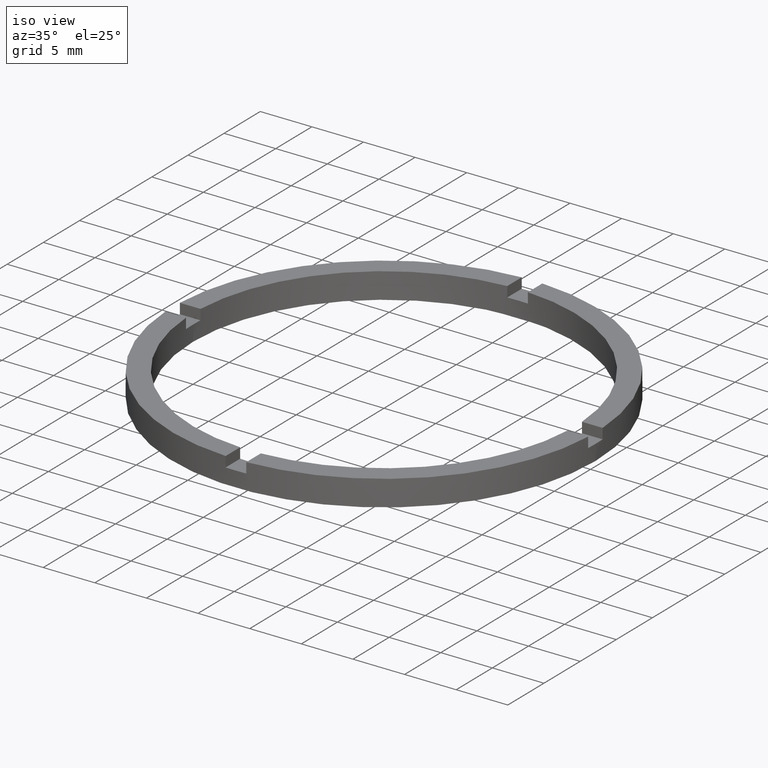
[diagram: clean part render]
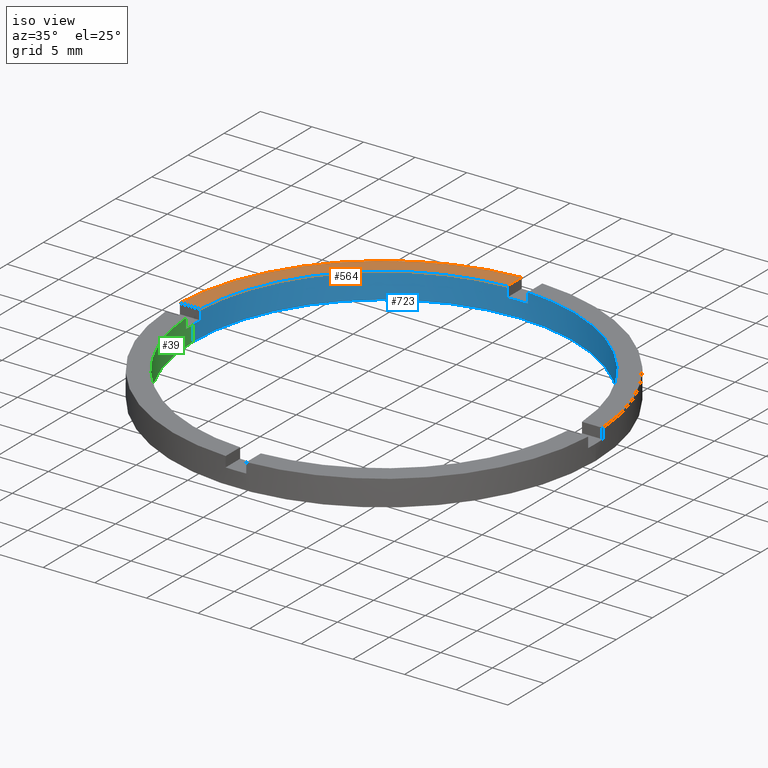
[diagram: same view with three faces highlighted in distinct colors, each labeled with its STEP entity id]
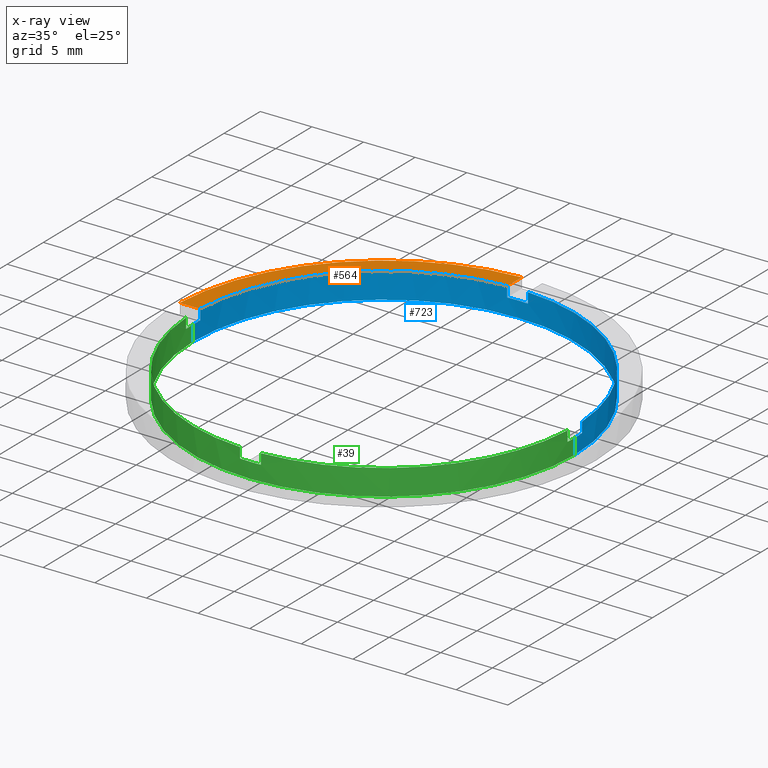
[diagram: x-ray of the same camera — body ghosted, the three highlighted faces saturated]
A machine part, iso view with three faces highlighted in distinct colors.
The next image is the same camera in x-ray (body ghosted, the three faces saturated) — at least one of them is partly hidden behind the body in this view.
Their STEP definitions:

[orange] entity #564 — the highlighted planar face has unit normal (0, 0, 1).
#53 = CARTESIAN_POINT ( 'NONE',  ( 0.000000000000000000, 0.000000000000000000, 2.500000000000000000 ) ) ;
#55 = CARTESIAN_POINT ( 'NONE',  ( -1.000000000000025091, 20.47559522944326460, 2.500000000000000000 ) ) ;
#60 = AXIS2_PLACEMENT_3D ( 'NONE', #121, #377, #285 ) ;
#98 = CARTESIAN_POINT ( 'NONE',  ( -1.000000000000025091, 18.47295320191116019, 2.500000000000000000 ) ) ;
#107 = DIRECTION ( 'NONE',  ( 0.000000000000000000, 0.000000000000000000, 1.000000000000000000 ) ) ;
#111 = LINE ( 'NONE', #543, #482 ) ;
#119 = EDGE_CURVE ( 'NONE', #438, #246, #530, .T. ) ;
#121 = CARTESIAN_POINT ( 'NONE',  ( 0.000000000000000000, 0.000000000000000000, 2.500000000000000000 ) ) ;
#127 = CIRCLE ( 'NONE', #391, 18.50000000000000000 ) ;
#132 = EDGE_LOOP ( 'NONE', ( #688, #197, #252, #206 ) ) ;
#197 = ORIENTED_EDGE ( 'NONE', *, *, #624, .T. ) ;
#206 = ORIENTED_EDGE ( 'NONE', *, *, #556, .F. ) ;
#246 = VERTEX_POINT ( 'NONE', #98 ) ;
#252 = ORIENTED_EDGE ( 'NONE', *, *, #767, .F. ) ;
#271 = DIRECTION ( 'NONE',  ( 1.000000000000000000, 0.000000000000000000, 0.000000000000000000 ) ) ;
#275 = CARTESIAN_POINT ( 'NONE',  ( -1.000000000000025535, 10.50000000000000000, 2.500000000000000000 ) ) ;
#278 = CARTESIAN_POINT ( 'NONE',  ( 0.000000000000000000, 0.000000000000000000, 2.500000000000000000 ) ) ;
#285 = DIRECTION ( 'NONE',  ( 1.000000000000000000, 0.000000000000000000, -0.000000000000000000 ) ) ;
#364 = DIRECTION ( 'NONE',  ( -0.000000000000000000, -1.000000000000000000, -0.000000000000000000 ) ) ;
#377 = DIRECTION ( 'NONE',  ( 0.000000000000000000, 0.000000000000000000, 1.000000000000000000 ) ) ;
#391 = AXIS2_PLACEMENT_3D ( 'NONE', #53, #107, #271 ) ;
#392 = CARTESIAN_POINT ( 'NONE',  ( -18.47295320191116375, 0.9999999999999754641, 2.500000000000000000 ) ) ;
#424 = VERTEX_POINT ( 'NONE', #675 ) ;
#431 = FACE_OUTER_BOUND ( 'NONE', #132, .T. ) ;
#438 = VERTEX_POINT ( 'NONE', #55 ) ;
#472 = PLANE ( 'NONE',  #60 ) ;
#482 = VECTOR ( 'NONE', #578, 1000.000000000000000 ) ;
#530 = LINE ( 'NONE', #275, #532 ) ;
#532 = VECTOR ( 'NONE', #364, 1000.000000000000000 ) ;
#543 = CARTESIAN_POINT ( 'NONE',  ( -10.50000000000018652, 0.9999999999999770184, 2.500000000000000000 ) ) ;
#556 = EDGE_CURVE ( 'NONE', #246, #674, #127, .T. ) ;
#564 = ADVANCED_FACE ( 'NONE', ( #431 ), #472, .T. ) ;
#578 = DIRECTION ( 'NONE',  ( -1.000000000000000000, -1.734723475976806848E-16, 0.000000000000000000 ) ) ;
#585 = AXIS2_PLACEMENT_3D ( 'NONE', #278, #678, #701 ) ;
#615 = CIRCLE ( 'NONE', #585, 20.50000000000000000 ) ;
#624 = EDGE_CURVE ( 'NONE', #438, #424, #615, .T. ) ;
#674 = VERTEX_POINT ( 'NONE', #392 ) ;
#675 = CARTESIAN_POINT ( 'NONE',  ( -20.47559522944327171, 0.9999999999999753530, 2.500000000000000000 ) ) ;
#678 = DIRECTION ( 'NONE',  ( 0.000000000000000000, 0.000000000000000000, 1.000000000000000000 ) ) ;
#688 = ORIENTED_EDGE ( 'NONE', *, *, #119, .F. ) ;
#701 = DIRECTION ( 'NONE',  ( 1.000000000000000000, 0.000000000000000000, 0.000000000000000000 ) ) ;
#767 = EDGE_CURVE ( 'NONE', #674, #424, #111, .T. ) ;

[blue] entity #723 — the highlighted cylindrical surface (partial cylindrical patch) has radius 18.5 mm, axis along (-0, -0, -1).
#1 = CIRCLE ( 'NONE', #116, 18.50000000000000000 ) ;
#9 = DIRECTION ( 'NONE',  ( 1.000000000000000000, 0.000000000000000000, 0.000000000000000000 ) ) ;
#30 = AXIS2_PLACEMENT_3D ( 'NONE', #92, #51, #108 ) ;
#43 = DIRECTION ( 'NONE',  ( -0.000000000000000000, -0.000000000000000000, -1.000000000000000000 ) ) ;
#51 = DIRECTION ( 'NONE',  ( 0.000000000000000000, 0.000000000000000000, 1.000000000000000000 ) ) ;
#52 = EDGE_CURVE ( 'NONE', #703, #422, #261, .T. ) ;
#53 = CARTESIAN_POINT ( 'NONE',  ( 0.000000000000000000, 0.000000000000000000, 2.500000000000000000 ) ) ;
#59 = CARTESIAN_POINT ( 'NONE',  ( 0.9999999999999740208, 18.47295320191116019, 1.500000000000000000 ) ) ;
#61 = CARTESIAN_POINT ( 'NONE',  ( 0.9999999999999744649, 18.47295320191116375, 2.500000000000000000 ) ) ;
#63 = CARTESIAN_POINT ( 'NONE',  ( 18.47295320191117085, 0.9999999999998416822, 2.500000000000000000 ) ) ;
#69 = EDGE_CURVE ( 'NONE', #138, #125, #1, .T. ) ;
#73 = DIRECTION ( 'NONE',  ( -0.000000000000000000, -0.000000000000000000, -1.000000000000000000 ) ) ;
#81 = DIRECTION ( 'NONE',  ( 1.000000000000000000, 0.000000000000000000, 0.000000000000000000 ) ) ;
#89 = VECTOR ( 'NONE', #73, 1000.000000000000000 ) ;
#92 = CARTESIAN_POINT ( 'NONE',  ( 0.000000000000000000, 0.000000000000000000, 2.500000000000000000 ) ) ;
#98 = CARTESIAN_POINT ( 'NONE',  ( -1.000000000000025091, 18.47295320191116019, 2.500000000000000000 ) ) ;
#101 = LINE ( 'NONE', #763, #89 ) ;
#107 = DIRECTION ( 'NONE',  ( 0.000000000000000000, 0.000000000000000000, 1.000000000000000000 ) ) ;
#108 = DIRECTION ( 'NONE',  ( 1.000000000000000000, 0.000000000000000000, 0.000000000000000000 ) ) ;
#115 = DIRECTION ( 'NONE',  ( 0.000000000000000000, 0.000000000000000000, 1.000000000000000000 ) ) ;
#116 = AXIS2_PLACEMENT_3D ( 'NONE', #468, #749, #9 ) ;
#124 = CARTESIAN_POINT ( 'NONE',  ( 0.000000000000000000, 0.000000000000000000, 2.500000000000000000 ) ) ;
#125 = VERTEX_POINT ( 'NONE', #393 ) ;
#127 = CIRCLE ( 'NONE', #391, 18.50000000000000000 ) ;
#130 = LINE ( 'NONE', #286, #662 ) ;
#133 = CARTESIAN_POINT ( 'NONE',  ( 18.50000000000000000, 2.265596578422603396E-15, 1.500000000000000000 ) ) ;
#138 = VERTEX_POINT ( 'NONE', #396 ) ;
#144 = ORIENTED_EDGE ( 'NONE', *, *, #355, .F. ) ;
#150 = ORIENTED_EDGE ( 'NONE', *, *, #717, .T. ) ;
#166 = VERTEX_POINT ( 'NONE', #59 ) ;
#176 = ORIENTED_EDGE ( 'NONE', *, *, #556, .T. ) ;
#186 = EDGE_CURVE ( 'NONE', #203, #682, #239, .T. ) ;
#203 = VERTEX_POINT ( 'NONE', #397 ) ;
#214 = ORIENTED_EDGE ( 'NONE', *, *, #566, .F. ) ;
#229 = ORIENTED_EDGE ( 'NONE', *, *, #601, .T. ) ;
#230 = DIRECTION ( 'NONE',  ( -0.000000000000000000, -0.000000000000000000, -1.000000000000000000 ) ) ;
#237 = DIRECTION ( 'NONE',  ( 1.000000000000000000, 0.000000000000000000, 0.000000000000000000 ) ) ;
#239 = CIRCLE ( 'NONE', #436, 18.50000000000000000 ) ;
#246 = VERTEX_POINT ( 'NONE', #98 ) ;
#261 = LINE ( 'NONE', #63, #533 ) ;
#271 = DIRECTION ( 'NONE',  ( 1.000000000000000000, 0.000000000000000000, 0.000000000000000000 ) ) ;
#283 = DIRECTION ( 'NONE',  ( -0.000000000000000000, -0.000000000000000000, -1.000000000000000000 ) ) ;
#284 = AXIS2_PLACEMENT_3D ( 'NONE', #124, #283, #340 ) ;
#286 = CARTESIAN_POINT ( 'NONE',  ( -18.47295320191116375, 0.9999999999999754641, 2.500000000000000000 ) ) ;
#295 = DIRECTION ( 'NONE',  ( 0.000000000000000000, 0.000000000000000000, 1.000000000000000000 ) ) ;
#334 = AXIS2_PLACEMENT_3D ( 'NONE', #495, #335, #623 ) ;
#335 = DIRECTION ( 'NONE',  ( 0.000000000000000000, -0.000000000000000000, 1.000000000000000000 ) ) ;
#340 = DIRECTION ( 'NONE',  ( -1.000000000000000000, 0.000000000000000000, 0.000000000000000000 ) ) ;
#355 = EDGE_CURVE ( 'NONE', #138, #674, #130, .T. ) ;
#361 = LINE ( 'NONE', #441, #614 ) ;
#370 = CIRCLE ( 'NONE', #411, 18.50000000000000000 ) ;
#378 = CIRCLE ( 'NONE', #30, 18.50000000000000000 ) ;
#380 = DIRECTION ( 'NONE',  ( 0.000000000000000000, 0.000000000000000000, 1.000000000000000000 ) ) ;
#384 = FACE_OUTER_BOUND ( 'NONE', #697, .T. ) ;
#385 = CARTESIAN_POINT ( 'NONE',  ( -1.000000000000025091, 18.47295320191116019, 1.500000000000000000 ) ) ;
#391 = AXIS2_PLACEMENT_3D ( 'NONE', #53, #107, #271 ) ;
#392 = CARTESIAN_POINT ( 'NONE',  ( -18.47295320191116375, 0.9999999999999754641, 2.500000000000000000 ) ) ;
#393 = CARTESIAN_POINT ( 'NONE',  ( -18.50000000000000000, 0.000000000000000000, 1.500000000000000000 ) ) ;
#396 = CARTESIAN_POINT ( 'NONE',  ( -18.47295320191116375, 0.9999999999999754641, 1.500000000000000000 ) ) ;
#397 = CARTESIAN_POINT ( 'NONE',  ( 18.50000000000000000, 2.265596578422603396E-15, 0.000000000000000000 ) ) ;
#399 = ORIENTED_EDGE ( 'NONE', *, *, #603, .T. ) ;
#407 = DIRECTION ( 'NONE',  ( 0.000000000000000000, 0.000000000000000000, 1.000000000000000000 ) ) ;
#411 = AXIS2_PLACEMENT_3D ( 'NONE', #582, #295, #237 ) ;
#412 = VECTOR ( 'NONE', #115, 1000.000000000000000 ) ;
#413 = ORIENTED_EDGE ( 'NONE', *, *, #611, .T. ) ;
#422 = VERTEX_POINT ( 'NONE', #612 ) ;
#430 = CARTESIAN_POINT ( 'NONE',  ( 0.000000000000000000, 0.000000000000000000, 0.000000000000000000 ) ) ;
#436 = AXIS2_PLACEMENT_3D ( 'NONE', #430, #407, #81 ) ;
#441 = CARTESIAN_POINT ( 'NONE',  ( -18.50000000000000000, 0.000000000000000000, 2.500000000000000000 ) ) ;
#456 = VECTOR ( 'NONE', #230, 1000.000000000000000 ) ;
#466 = CARTESIAN_POINT ( 'NONE',  ( -18.50000000000000000, 0.000000000000000000, 0.000000000000000000 ) ) ;
#468 = CARTESIAN_POINT ( 'NONE',  ( 0.000000000000000000, 0.000000000000000000, 1.500000000000000000 ) ) ;
#469 = ORIENTED_EDGE ( 'NONE', *, *, #620, .F. ) ;
#474 = ORIENTED_EDGE ( 'NONE', *, *, #186, .F. ) ;
#495 = CARTESIAN_POINT ( 'NONE',  ( 0.000000000000000000, 0.000000000000000000, 1.500000000000000000 ) ) ;
#533 = VECTOR ( 'NONE', #608, 1000.000000000000000 ) ;
#556 = EDGE_CURVE ( 'NONE', #246, #674, #127, .T. ) ;
#566 = EDGE_CURVE ( 'NONE', #166, #668, #652, .T. ) ;
#582 = CARTESIAN_POINT ( 'NONE',  ( 0.000000000000000000, 0.000000000000000000, 1.500000000000000000 ) ) ;
#601 = EDGE_CURVE ( 'NONE', #125, #682, #361, .T. ) ;
#603 = EDGE_CURVE ( 'NONE', #703, #668, #378, .T. ) ;
#608 = DIRECTION ( 'NONE',  ( -0.000000000000000000, -0.000000000000000000, -1.000000000000000000 ) ) ;
#611 = EDGE_CURVE ( 'NONE', #166, #709, #621, .T. ) ;
#612 = CARTESIAN_POINT ( 'NONE',  ( 18.47295320191117085, 0.9999999999998416822, 1.500000000000000000 ) ) ;
#613 = CARTESIAN_POINT ( 'NONE',  ( -1.000000000000025535, 18.47295320191116375, 2.500000000000000000 ) ) ;
#614 = VECTOR ( 'NONE', #43, 1000.000000000000000 ) ;
#620 = EDGE_CURVE ( 'NONE', #671, #203, #101, .T. ) ;
#621 = CIRCLE ( 'NONE', #334, 18.50000000000000000 ) ;
#623 = DIRECTION ( 'NONE',  ( 1.000000000000000000, 0.000000000000000000, 0.000000000000000000 ) ) ;
#631 = CYLINDRICAL_SURFACE ( 'NONE', #284, 18.50000000000000000 ) ;
#642 = ORIENTED_EDGE ( 'NONE', *, *, #52, .F. ) ;
#652 = LINE ( 'NONE', #61, #412 ) ;
#658 = ORIENTED_EDGE ( 'NONE', *, *, #69, .T. ) ;
#662 = VECTOR ( 'NONE', #380, 1000.000000000000000 ) ;
#668 = VERTEX_POINT ( 'NONE', #695 ) ;
#671 = VERTEX_POINT ( 'NONE', #133 ) ;
#674 = VERTEX_POINT ( 'NONE', #392 ) ;
#679 = LINE ( 'NONE', #613, #456 ) ;
#682 = VERTEX_POINT ( 'NONE', #466 ) ;
#686 = CARTESIAN_POINT ( 'NONE',  ( 18.47295320191117085, 0.9999999999998416822, 2.500000000000000000 ) ) ;
#695 = CARTESIAN_POINT ( 'NONE',  ( 0.9999999999999740208, 18.47295320191116019, 2.500000000000000000 ) ) ;
#697 = EDGE_LOOP ( 'NONE', ( #469, #150, #642, #399, #214, #413, #718, #176, #144, #658, #229, #474 ) ) ;
#703 = VERTEX_POINT ( 'NONE', #686 ) ;
#709 = VERTEX_POINT ( 'NONE', #385 ) ;
#717 = EDGE_CURVE ( 'NONE', #671, #422, #370, .T. ) ;
#718 = ORIENTED_EDGE ( 'NONE', *, *, #774, .F. ) ;
#723 = ADVANCED_FACE ( 'NONE', ( #384 ), #631, .F. ) ;
#749 = DIRECTION ( 'NONE',  ( 0.000000000000000000, 0.000000000000000000, 1.000000000000000000 ) ) ;
#763 = CARTESIAN_POINT ( 'NONE',  ( 18.50000000000000000, 2.265596578422603396E-15, 2.500000000000000000 ) ) ;
#774 = EDGE_CURVE ( 'NONE', #246, #709, #679, .T. ) ;

[green] entity #39 — the highlighted cylindrical surface (partial cylindrical patch) has radius 18.5 mm, axis along (-0, -0, -1).
#4 = DIRECTION ( 'NONE',  ( 1.000000000000000000, 0.000000000000000000, 0.000000000000000000 ) ) ;
#10 = CARTESIAN_POINT ( 'NONE',  ( 0.9999999999998382405, -18.47295320191117440, 2.500000000000000000 ) ) ;
#13 = CARTESIAN_POINT ( 'NONE',  ( -18.47295320191116375, -1.000000000000024425, 2.500000000000000000 ) ) ;
#16 = DIRECTION ( 'NONE',  ( -0.000000000000000000, 0.000000000000000000, 1.000000000000000000 ) ) ;
#39 = ADVANCED_FACE ( 'NONE', ( #750 ), #249, .F. ) ;
#43 = DIRECTION ( 'NONE',  ( -0.000000000000000000, -0.000000000000000000, -1.000000000000000000 ) ) ;
#49 = DIRECTION ( 'NONE',  ( -0.000000000000000000, -0.000000000000000000, -1.000000000000000000 ) ) ;
#68 = CARTESIAN_POINT ( 'NONE',  ( 0.9999999999998377964, -18.47295320191117085, 2.500000000000000000 ) ) ;
#73 = DIRECTION ( 'NONE',  ( -0.000000000000000000, -0.000000000000000000, -1.000000000000000000 ) ) ;
#89 = VECTOR ( 'NONE', #73, 1000.000000000000000 ) ;
#94 = CIRCLE ( 'NONE', #215, 18.50000000000000000 ) ;
#95 = CARTESIAN_POINT ( 'NONE',  ( 18.47295320191115309, -1.000000000000158318, 2.500000000000000000 ) ) ;
#100 = CIRCLE ( 'NONE', #356, 18.50000000000000000 ) ;
#101 = LINE ( 'NONE', #763, #89 ) ;
#118 = CARTESIAN_POINT ( 'NONE',  ( 0.000000000000000000, 0.000000000000000000, 1.500000000000000000 ) ) ;
#125 = VERTEX_POINT ( 'NONE', #393 ) ;
#133 = CARTESIAN_POINT ( 'NONE',  ( 18.50000000000000000, 2.265596578422603396E-15, 1.500000000000000000 ) ) ;
#136 = AXIS2_PLACEMENT_3D ( 'NONE', #475, #594, #4 ) ;
#145 = CARTESIAN_POINT ( 'NONE',  ( 18.47295320191115309, -1.000000000000158318, 2.500000000000000000 ) ) ;
#149 = LINE ( 'NONE', #10, #400 ) ;
#153 = ORIENTED_EDGE ( 'NONE', *, *, #522, .F. ) ;
#159 = LINE ( 'NONE', #563, #433 ) ;
#162 = ORIENTED_EDGE ( 'NONE', *, *, #449, .F. ) ;
#172 = ORIENTED_EDGE ( 'NONE', *, *, #434, .T. ) ;
#175 = ORIENTED_EDGE ( 'NONE', *, *, #644, .T. ) ;
#203 = VERTEX_POINT ( 'NONE', #397 ) ;
#204 = CARTESIAN_POINT ( 'NONE',  ( -1.000000000000161871, -18.47295320191115309, 2.500000000000000000 ) ) ;
#212 = ORIENTED_EDGE ( 'NONE', *, *, #758, .F. ) ;
#215 = AXIS2_PLACEMENT_3D ( 'NONE', #549, #367, #618 ) ;
#216 = VERTEX_POINT ( 'NONE', #636 ) ;
#220 = DIRECTION ( 'NONE',  ( 1.000000000000000000, 0.000000000000000000, 0.000000000000000000 ) ) ;
#244 = DIRECTION ( 'NONE',  ( 0.000000000000000000, 0.000000000000000000, 1.000000000000000000 ) ) ;
#245 = EDGE_CURVE ( 'NONE', #665, #442, #517, .T. ) ;
#249 = CYLINDRICAL_SURFACE ( 'NONE', #656, 18.50000000000000000 ) ;
#260 = DIRECTION ( 'NONE',  ( 0.000000000000000000, 0.000000000000000000, 1.000000000000000000 ) ) ;
#277 = AXIS2_PLACEMENT_3D ( 'NONE', #542, #282, #570 ) ;
#282 = DIRECTION ( 'NONE',  ( 0.000000000000000000, 0.000000000000000000, 1.000000000000000000 ) ) ;
#290 = AXIS2_PLACEMENT_3D ( 'NONE', #547, #756, #760 ) ;
#319 = EDGE_CURVE ( 'NONE', #648, #507, #771, .T. ) ;
#353 = CARTESIAN_POINT ( 'NONE',  ( 0.000000000000000000, 0.000000000000000000, 2.500000000000000000 ) ) ;
#356 = AXIS2_PLACEMENT_3D ( 'NONE', #610, #672, #757 ) ;
#361 = LINE ( 'NONE', #441, #614 ) ;
#367 = DIRECTION ( 'NONE',  ( 0.000000000000000000, 0.000000000000000000, 1.000000000000000000 ) ) ;
#374 = CARTESIAN_POINT ( 'NONE',  ( -1.000000000000161426, -18.47295320191114953, 1.500000000000000000 ) ) ;
#376 = CIRCLE ( 'NONE', #290, 18.50000000000000000 ) ;
#379 = CIRCLE ( 'NONE', #531, 18.50000000000000000 ) ;
#382 = CARTESIAN_POINT ( 'NONE',  ( 0.9999999999998377964, -18.47295320191117085, 1.500000000000000000 ) ) ;
#389 = VECTOR ( 'NONE', #244, 1000.000000000000000 ) ;
#393 = CARTESIAN_POINT ( 'NONE',  ( -18.50000000000000000, 0.000000000000000000, 1.500000000000000000 ) ) ;
#397 = CARTESIAN_POINT ( 'NONE',  ( 18.50000000000000000, 2.265596578422603396E-15, 0.000000000000000000 ) ) ;
#400 = VECTOR ( 'NONE', #49, 1000.000000000000000 ) ;
#404 = DIRECTION ( 'NONE',  ( -1.000000000000000000, 0.000000000000000000, 0.000000000000000000 ) ) ;
#406 = EDGE_LOOP ( 'NONE', ( #175, #722, #448, #455, #172, #162, #432, #515, #496, #153, #680, #212 ) ) ;
#421 = VERTEX_POINT ( 'NONE', #382 ) ;
#432 = ORIENTED_EDGE ( 'NONE', *, *, #664, .T. ) ;
#433 = VECTOR ( 'NONE', #537, 1000.000000000000000 ) ;
#434 = EDGE_CURVE ( 'NONE', #125, #216, #669, .T. ) ;
#441 = CARTESIAN_POINT ( 'NONE',  ( -18.50000000000000000, 0.000000000000000000, 2.500000000000000000 ) ) ;
#442 = VERTEX_POINT ( 'NONE', #571 ) ;
#448 = ORIENTED_EDGE ( 'NONE', *, *, #593, .F. ) ;
#449 = EDGE_CURVE ( 'NONE', #720, #216, #159, .T. ) ;
#455 = ORIENTED_EDGE ( 'NONE', *, *, #601, .F. ) ;
#457 = VERTEX_POINT ( 'NONE', #639 ) ;
#466 = CARTESIAN_POINT ( 'NONE',  ( -18.50000000000000000, 0.000000000000000000, 0.000000000000000000 ) ) ;
#475 = CARTESIAN_POINT ( 'NONE',  ( 0.000000000000000000, 0.000000000000000000, 1.500000000000000000 ) ) ;
#496 = ORIENTED_EDGE ( 'NONE', *, *, #753, .T. ) ;
#507 = VERTEX_POINT ( 'NONE', #95 ) ;
#509 = DIRECTION ( 'NONE',  ( -0.000000000000000000, -0.000000000000000000, -1.000000000000000000 ) ) ;
#515 = ORIENTED_EDGE ( 'NONE', *, *, #245, .F. ) ;
#517 = LINE ( 'NONE', #204, #525 ) ;
#522 = EDGE_CURVE ( 'NONE', #648, #421, #149, .T. ) ;
#525 = VECTOR ( 'NONE', #260, 1000.000000000000000 ) ;
#531 = AXIS2_PLACEMENT_3D ( 'NONE', #118, #16, #220 ) ;
#537 = DIRECTION ( 'NONE',  ( -0.000000000000000000, -0.000000000000000000, -1.000000000000000000 ) ) ;
#542 = CARTESIAN_POINT ( 'NONE',  ( 0.000000000000000000, 0.000000000000000000, 2.500000000000000000 ) ) ;
#547 = CARTESIAN_POINT ( 'NONE',  ( 0.000000000000000000, 0.000000000000000000, 2.500000000000000000 ) ) ;
#549 = CARTESIAN_POINT ( 'NONE',  ( 0.000000000000000000, 0.000000000000000000, 1.500000000000000000 ) ) ;
#563 = CARTESIAN_POINT ( 'NONE',  ( -18.47295320191116375, -1.000000000000024425, 2.500000000000000000 ) ) ;
#570 = DIRECTION ( 'NONE',  ( 1.000000000000000000, 0.000000000000000000, 0.000000000000000000 ) ) ;
#571 = CARTESIAN_POINT ( 'NONE',  ( -1.000000000000161426, -18.47295320191114953, 2.500000000000000000 ) ) ;
#593 = EDGE_CURVE ( 'NONE', #682, #203, #100, .T. ) ;
#594 = DIRECTION ( 'NONE',  ( 0.000000000000000000, 0.000000000000000000, 1.000000000000000000 ) ) ;
#601 = EDGE_CURVE ( 'NONE', #125, #682, #361, .T. ) ;
#610 = CARTESIAN_POINT ( 'NONE',  ( 0.000000000000000000, 0.000000000000000000, 0.000000000000000000 ) ) ;
#614 = VECTOR ( 'NONE', #43, 1000.000000000000000 ) ;
#618 = DIRECTION ( 'NONE',  ( 1.000000000000000000, 0.000000000000000000, 0.000000000000000000 ) ) ;
#620 = EDGE_CURVE ( 'NONE', #671, #203, #101, .T. ) ;
#635 = LINE ( 'NONE', #145, #389 ) ;
#636 = CARTESIAN_POINT ( 'NONE',  ( -18.47295320191116375, -1.000000000000024425, 1.500000000000000000 ) ) ;
#639 = CARTESIAN_POINT ( 'NONE',  ( 18.47295320191115309, -1.000000000000158318, 1.500000000000000000 ) ) ;
#644 = EDGE_CURVE ( 'NONE', #457, #671, #94, .T. ) ;
#648 = VERTEX_POINT ( 'NONE', #68 ) ;
#656 = AXIS2_PLACEMENT_3D ( 'NONE', #353, #509, #404 ) ;
#664 = EDGE_CURVE ( 'NONE', #720, #442, #376, .T. ) ;
#665 = VERTEX_POINT ( 'NONE', #374 ) ;
#669 = CIRCLE ( 'NONE', #136, 18.50000000000000000 ) ;
#671 = VERTEX_POINT ( 'NONE', #133 ) ;
#672 = DIRECTION ( 'NONE',  ( 0.000000000000000000, 0.000000000000000000, 1.000000000000000000 ) ) ;
#680 = ORIENTED_EDGE ( 'NONE', *, *, #319, .T. ) ;
#682 = VERTEX_POINT ( 'NONE', #466 ) ;
#720 = VERTEX_POINT ( 'NONE', #13 ) ;
#722 = ORIENTED_EDGE ( 'NONE', *, *, #620, .T. ) ;
#750 = FACE_OUTER_BOUND ( 'NONE', #406, .T. ) ;
#753 = EDGE_CURVE ( 'NONE', #665, #421, #379, .T. ) ;
#756 = DIRECTION ( 'NONE',  ( 0.000000000000000000, 0.000000000000000000, 1.000000000000000000 ) ) ;
#757 = DIRECTION ( 'NONE',  ( 1.000000000000000000, 0.000000000000000000, 0.000000000000000000 ) ) ;
#758 = EDGE_CURVE ( 'NONE', #457, #507, #635, .T. ) ;
#760 = DIRECTION ( 'NONE',  ( 1.000000000000000000, 0.000000000000000000, 0.000000000000000000 ) ) ;
#763 = CARTESIAN_POINT ( 'NONE',  ( 18.50000000000000000, 2.265596578422603396E-15, 2.500000000000000000 ) ) ;
#771 = CIRCLE ( 'NONE', #277, 18.50000000000000000 ) ;